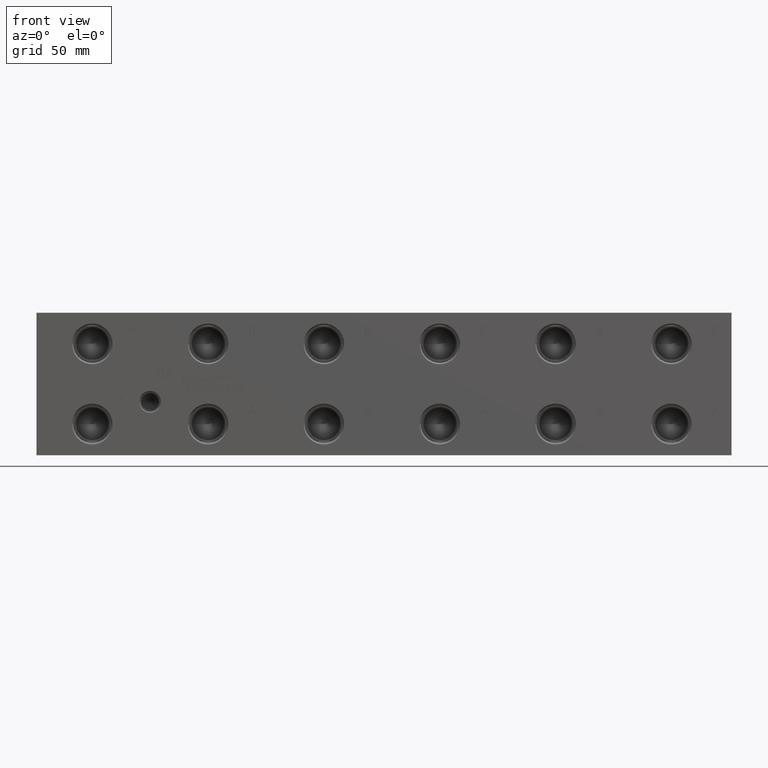
[diagram: clean part render]
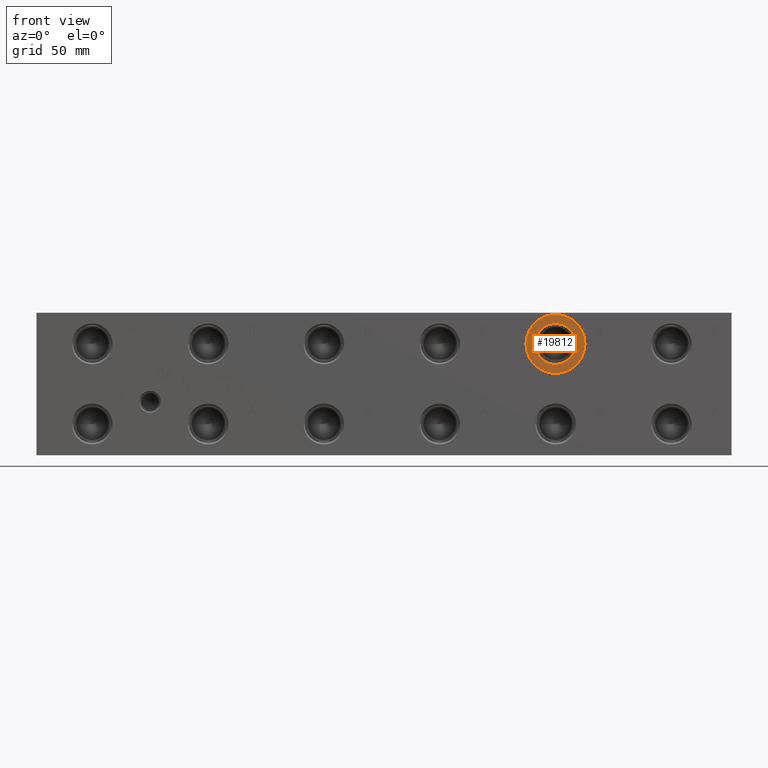
[diagram: same view with one face highlighted and labeled with its STEP entity id]
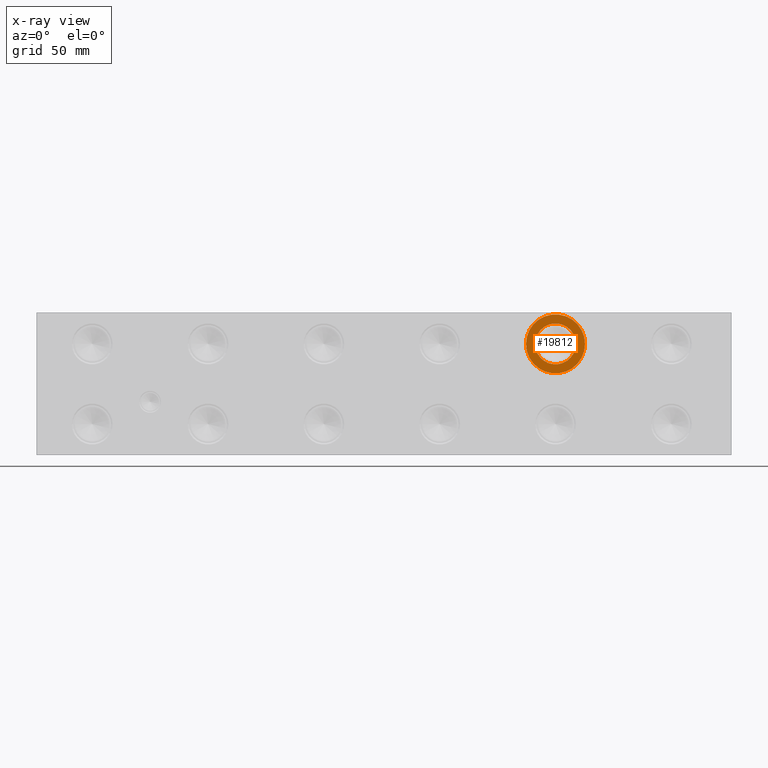
[diagram: x-ray of the same camera — body ghosted, the highlighted face saturated]
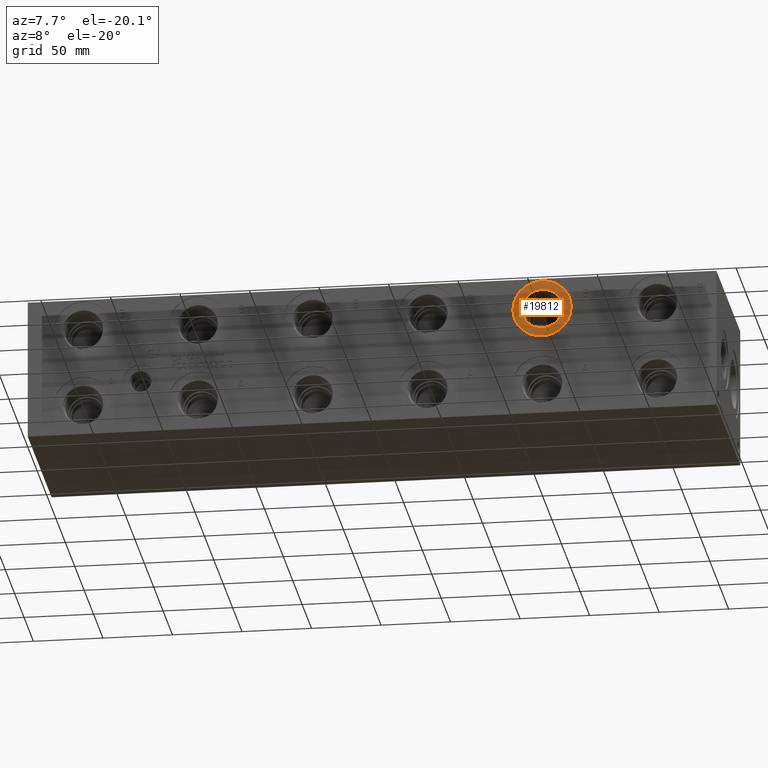
[diagram: same view with one face highlighted and labeled with its STEP entity id]
A machine part, front view. The second image highlights one B-rep face of the part: STEP entity #19812.
The next image is the same camera in x-ray: the body ghosted, the highlighted face saturated — about 0% of this face is hidden behind the body in this view.
A second angle (auxiliary view) of the same face is appended — the face is thin or edge-on in the first view.
In plain terms, the highlighted planar face has unit normal (0, 1, 0).
Its self-contained STEP definition (entity closure, byte-faithful):
#626=CIRCLE('',#20705,21.0185);
#627=CIRCLE('',#20706,21.0185);
#628=CIRCLE('',#20708,14.5923);
#629=CIRCLE('',#20709,14.5923);
#1787=FACE_BOUND('',#3748,.T.);
#2600=FACE_OUTER_BOUND('',#3747,.T.);
#3747=EDGE_LOOP('',(#16146,#16147));
#3748=EDGE_LOOP('',(#16148,#16149));
#8866=VERTEX_POINT('',#33367);
#8867=VERTEX_POINT('',#33369);
#8868=VERTEX_POINT('',#33373);
#8869=VERTEX_POINT('',#33374);
#11458=EDGE_CURVE('',#8866,#8867,#626,.T.);
#11459=EDGE_CURVE('',#8867,#8866,#627,.T.);
#11460=EDGE_CURVE('',#8868,#8869,#628,.T.);
#11461=EDGE_CURVE('',#8869,#8868,#629,.T.);
#16146=ORIENTED_EDGE('',*,*,#11459,.F.);
#16147=ORIENTED_EDGE('',*,*,#11458,.F.);
#16148=ORIENTED_EDGE('',*,*,#11460,.T.);
#16149=ORIENTED_EDGE('',*,*,#11461,.T.);
#18385=PLANE('',#20707);
#19812=ADVANCED_FACE('',(#2600,#1787),#18385,.F.);
#20705=AXIS2_PLACEMENT_3D('',#33370,#24074,#24075);
#20706=AXIS2_PLACEMENT_3D('',#33371,#24076,#24077);
#20707=AXIS2_PLACEMENT_3D('',#33372,#24078,#24079);
#20708=AXIS2_PLACEMENT_3D('',#33375,#24080,#24081);
#20709=AXIS2_PLACEMENT_3D('',#33376,#24082,#24083);
#24074=DIRECTION('center_axis',(0.,1.,0.));
#24075=DIRECTION('ref_axis',(1.,0.,0.));
#24076=DIRECTION('center_axis',(0.,1.,0.));
#24077=DIRECTION('ref_axis',(1.,0.,0.));
#24078=DIRECTION('center_axis',(0.,1.,0.));
#24079=DIRECTION('ref_axis',(0.,0.,1.));
#24080=DIRECTION('center_axis',(0.,1.,0.));
#24081=DIRECTION('ref_axis',(1.,0.,0.));
#24082=DIRECTION('center_axis',(0.,1.,0.));
#24083=DIRECTION('ref_axis',(1.,0.,0.));
#33367=CARTESIAN_POINT('',(348.8563,0.7874,79.375));
#33369=CARTESIAN_POINT('',(390.8933,0.7874,79.375));
#33370=CARTESIAN_POINT('Origin',(369.8748,0.7874,79.375));
#33371=CARTESIAN_POINT('Origin',(369.8748,0.7874,79.375));
#33372=CARTESIAN_POINT('Origin',(384.4671,0.7874,79.375));
#33373=CARTESIAN_POINT('',(384.4671,0.7874,79.375));
#33374=CARTESIAN_POINT('',(355.2825,0.787400000000009,79.375));
#33375=CARTESIAN_POINT('Origin',(369.8748,0.7874,79.375));
#33376=CARTESIAN_POINT('Origin',(369.8748,0.7874,79.375));